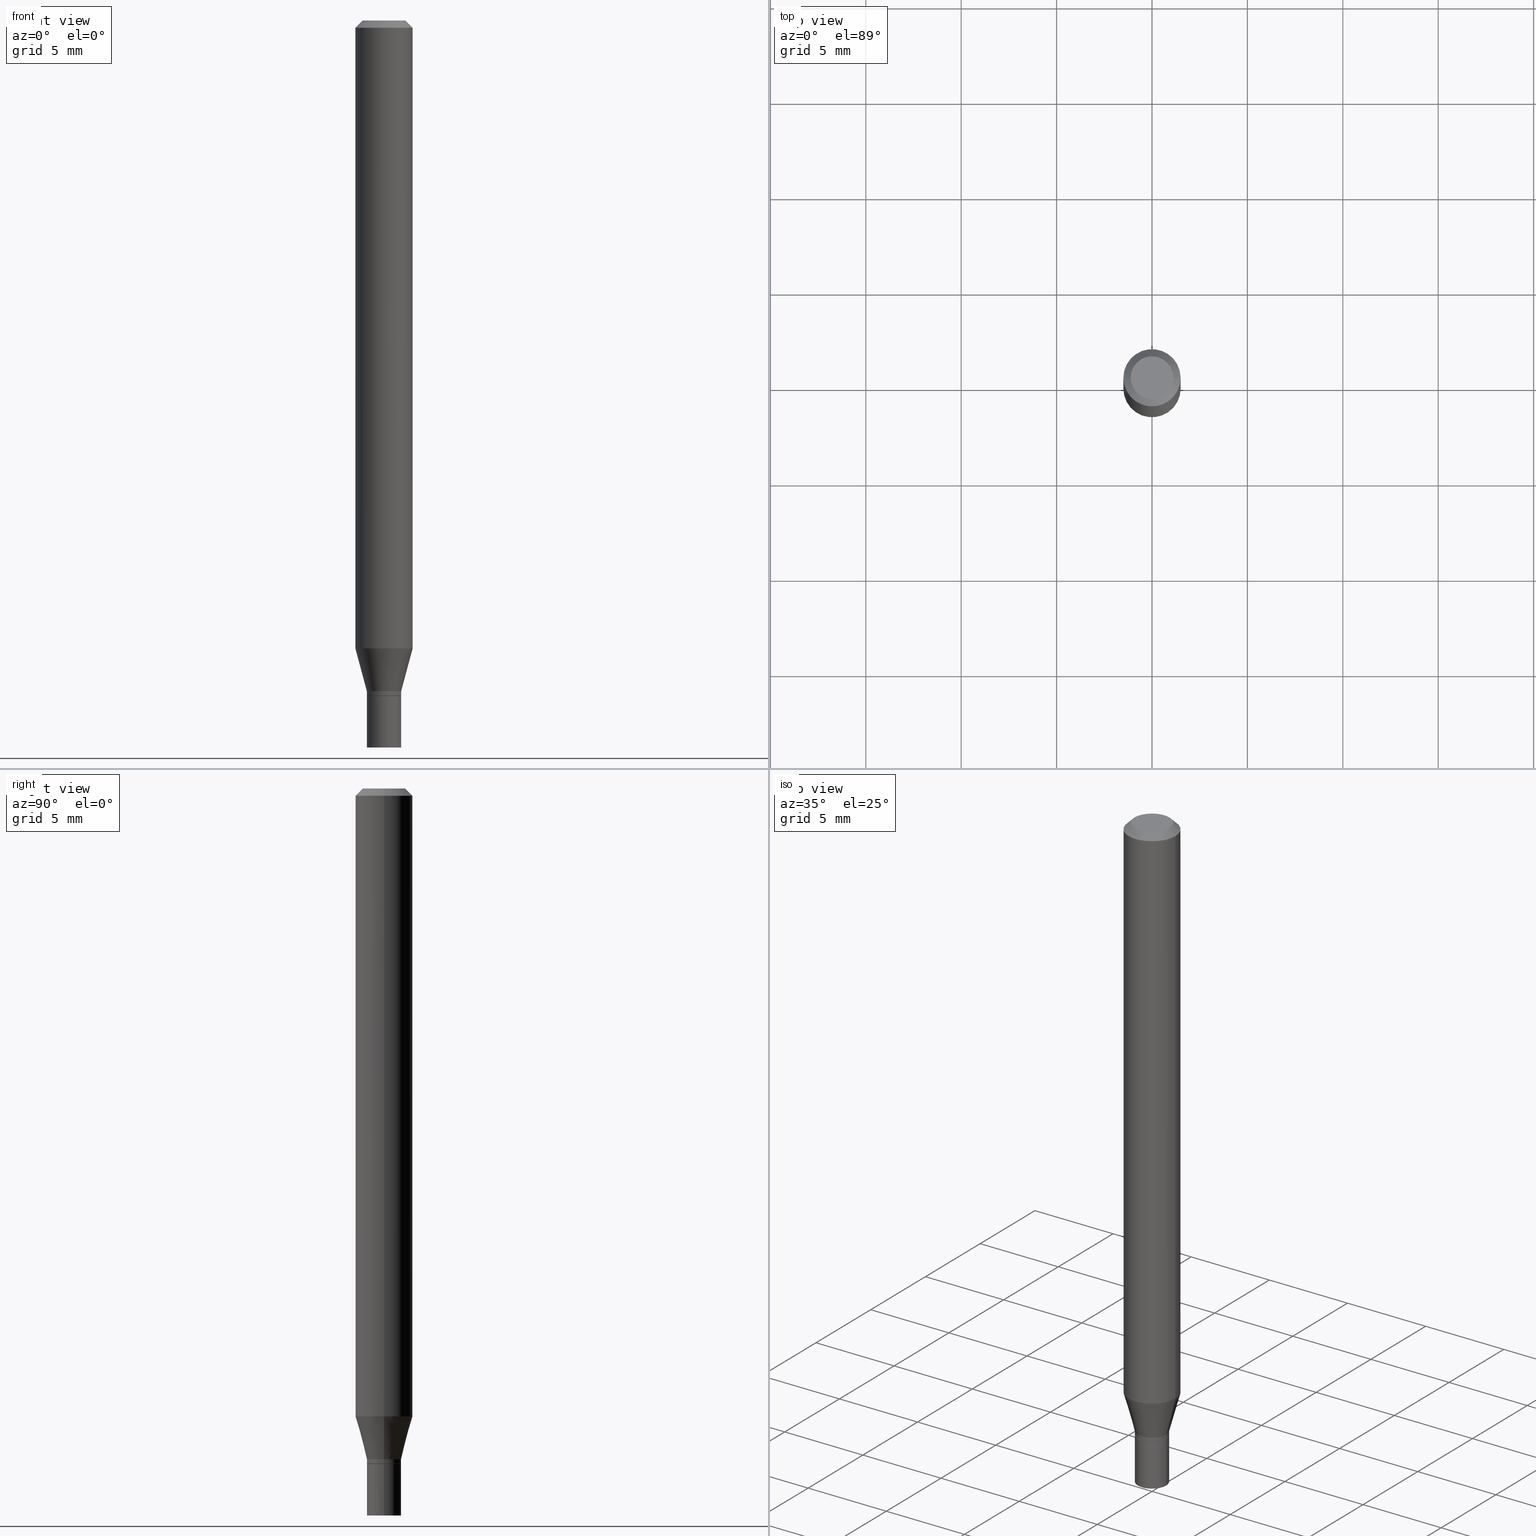
[diagram: canonical four-view strip — front | top / right | iso, engineering-drawing reading convention]
A machine part, canonical four-view strip (front | top / right | iso — engineering-drawing reading convention). The complete STEP part file that produces these views, byte-faithful:
ISO-10303-21;
HEADER;
FILE_DESCRIPTION (( 'STEP AP203' ),
    '1' );
FILE_NAME ('09296.STEP',
    '2024-03-14T18:24:56',
    ( '' ),
    ( '' ),
    'SwSTEP 2.0',
    'SolidWorks 2023',
    '' );
FILE_SCHEMA (( 'CONFIG_CONTROL_DESIGN' ));
ENDSEC;

DATA;
#1 = VERTEX_POINT ( 'NONE', #354 ) ;
#2 = CARTESIAN_POINT ( 'NONE',  ( -0.05904999999999999832, -4.104070139385231647E-15, -1.295623600941375297 ) ) ;
#3 = ADVANCED_FACE ( 'NONE', ( #177 ), #139, .T. ) ;
#4 = CARTESIAN_POINT ( 'NONE',  ( -2.903582104602009454E-45, 4.145545716378002760E-31, 1.187331483132478339E-16 ) ) ;
#5 = EDGE_CURVE ( 'NONE', #239, #148, #263, .T. ) ;
#6 = CARTESIAN_POINT ( 'NONE',  ( -0.04404999999999999888, 3.337856159934036604E-16, 1.187331483132455906E-16 ) ) ;
#7 = CIRCLE ( 'NONE', #145, 0.03545000000000019663 ) ;
#8 = CC_DESIGN_APPROVAL ( #57, ( #125 ) ) ;
#9 = FACE_OUTER_BOUND ( 'NONE', #289, .T. ) ;
#10 = DIRECTION ( 'NONE',  ( 0.000000000000000000, 0.000000000000000000, 1.000000000000000000 ) ) ;
#11 = FACE_OUTER_BOUND ( 'NONE', #56, .T. ) ;
#12 = PERSON_AND_ORGANIZATION ( #277, #187 ) ;
#13 = DIRECTION ( 'NONE',  ( -2.445468806185136597E-29, 3.491481338843145583E-15, 1.000000000000000000 ) ) ;
#14 = PRODUCT_DEFINITION_SHAPE ( 'NONE', 'NONE',  #125 ) ;
#15 =( NAMED_UNIT ( * ) SI_UNIT ( $, .STERADIAN. ) SOLID_ANGLE_UNIT ( ) );
#16 = DIRECTION ( 'NONE',  ( 1.000000000000000000, -6.982962677686273021E-15, 0.000000000000000000 ) ) ;
#17 = DIRECTION ( 'NONE',  ( 2.438088387897960049E-29, -3.491481338843145188E-15, -1.000000000000000000 ) ) ;
#18 = ORIENTED_EDGE ( 'NONE', *, *, #22, .T. ) ;
#19 = ADVANCED_FACE ( 'NONE', ( #45 ), #23, .T. ) ;
#20 = DIRECTION ( 'NONE',  ( 1.000000000000000000, -6.982962677686266711E-15, 4.876176775795936353E-29 ) ) ;
#21 = DESIGN_CONTEXT ( 'detailed design', #232, 'design' ) ;
#22 = EDGE_CURVE ( 'NONE', #95, #394, #80, .T. ) ;
#23 = CONICAL_SURFACE ( 'NONE', #38, 0.05904999999999999832, 0.7853981633974445042 ) ;
#24 = AXIS2_PLACEMENT_3D ( 'NONE', #37, #110, #175 ) ;
#25 = EDGE_LOOP ( 'NONE', ( #31, #418 ) ) ;
#26 = CARTESIAN_POINT ( 'NONE',  ( 3.668203209277705088E-31, -5.237222008264718399E-17, -0.01499999999999999944 ) ) ;
#27 = ORIENTED_EDGE ( 'NONE', *, *, #208, .F. ) ;
#28 = VECTOR ( 'NONE', #367, 39.37007874015748143 ) ;
#29 = DIRECTION ( 'NONE',  ( -2.445468806185136597E-29, 3.491481338843145583E-15, 1.000000000000000000 ) ) ;
#30 = CIRCLE ( 'NONE', #113, 0.05904999999999999832 ) ;
#31 = ORIENTED_EDGE ( 'NONE', *, *, #150, .T. ) ;
#32 = ADVANCED_BREP_SHAPE_REPRESENTATION ( '09296', ( #170, #346, #227 ), #314 ) ;
#33 = DIRECTION ( 'NONE',  ( -2.445468806185136597E-29, 3.491481338843145583E-15, 1.000000000000000000 ) ) ;
#34 = ORIENTED_EDGE ( 'NONE', *, *, #111, .F. ) ;
#35 = CARTESIAN_POINT ( 'NONE',  ( 3.383795187118373530E-29, -4.831162728557261458E-15, -1.383700000000000152 ) ) ;
#36 = VERTEX_POINT ( 'NONE', #6 ) ;
#37 = CARTESIAN_POINT ( 'NONE',  ( 3.408249875180226197E-29, -4.866077541945693896E-15, -1.393700000000000383 ) ) ;
#38 = AXIS2_PLACEMENT_3D ( 'NONE', #334, #437, #196 ) ;
#39 = APPROVAL_PERSON_ORGANIZATION ( #420, #453, #99 ) ;
#40 = DIRECTION ( 'NONE',  ( -2.438088387897960049E-29, 3.491481338843145188E-15, 1.000000000000000000 ) ) ;
#41 = CARTESIAN_POINT ( 'NONE',  ( 3.383795187118373530E-29, -4.831162728557261458E-15, -1.383700000000000152 ) ) ;
#42 = ADVANCED_FACE ( 'NONE', ( #261 ), #343, .T. ) ;
#43 = DIRECTION ( 'NONE',  ( -2.445468806185136597E-29, 3.491481338843145583E-15, 1.000000000000000000 ) ) ;
#44 = AXIS2_PLACEMENT_3D ( 'NONE', #342, #237, #378 ) ;
#45 = FACE_OUTER_BOUND ( 'NONE', #327, .T. ) ;
#46 = COORDINATED_UNIVERSAL_TIME_OFFSET ( 5, 0, .BEHIND. ) ;
#47 = CARTESIAN_POINT ( 'NONE',  ( 3.407027140777133395E-29, -4.864331801276271604E-15, -1.393200000000000216 ) ) ;
#48 = ADVANCED_FACE ( 'NONE', ( #304 ), #336, .F. ) ;
#49 = APPROVAL_STATUS ( 'not_yet_approved' ) ;
#50 = CARTESIAN_POINT ( 'NONE',  ( 0.000000000000000000, 0.000000000000000000, 0.000000000000000000 ) ) ;
#51 = APPLICATION_PROTOCOL_DEFINITION ( 'international standard', 'config_control_design', 1994, #328 ) ;
#52 = CARTESIAN_POINT ( 'NONE',  ( 3.408249875180225636E-29, -4.866077541945693107E-15, -1.393700000000000161 ) ) ;
#53 = CIRCLE ( 'NONE', #24, 0.03495000000000000190 ) ;
#54 = PERSON_AND_ORGANIZATION ( #277, #187 ) ;
#55 = FACE_OUTER_BOUND ( 'NONE', #65, .T. ) ;
#56 = EDGE_LOOP ( 'NONE', ( #269, #421, #174, #332 ) ) ;
#57 = APPROVAL ( #122, 'UNSPECIFIED' ) ;
#58 = VECTOR ( 'NONE', #464, 39.37007874015748143 ) ;
#59 = ADVANCED_FACE ( 'NONE', ( #11 ), #321, .T. ) ;
#60 = ADVANCED_FACE ( 'NONE', ( #9 ), #435, .F. ) ;
#61 = DIRECTION ( 'NONE',  ( 1.000000000000000000, -6.982962677686270655E-15, 0.000000000000000000 ) ) ;
#62 = ORIENTED_EDGE ( 'NONE', *, *, #70, .T. ) ;
#63 = ADVANCED_FACE ( 'NONE', ( #259 ), #229, .T. ) ;
#64 = DIRECTION ( 'NONE',  ( 0.7071067811865656694, -2.468850131082446387E-15, 0.7071067811865294761 ) ) ;
#65 = EDGE_LOOP ( 'NONE', ( #461, #386, #62, #352 ) ) ;
#66 = FACE_OUTER_BOUND ( 'NONE', #135, .T. ) ;
#67 = CIRCLE ( 'NONE', #380, 0.03545000000000000234 ) ;
#68 = ORIENTED_EDGE ( 'NONE', *, *, #369, .F. ) ;
#69 = CARTESIAN_POINT ( 'NONE',  ( 0.03545000000000019663, -5.078708755481240920E-15, -1.383700000000000152 ) ) ;
#70 = EDGE_CURVE ( 'NONE', #447, #360, #158, .T. ) ;
#71 = ORIENTED_EDGE ( 'NONE', *, *, #449, .T. ) ;
#72 = CARTESIAN_POINT ( 'NONE',  ( 0.03495000000000000190, -5.110132087530828773E-15, -1.393700000000000383 ) ) ;
#73 = CARTESIAN_POINT ( 'NONE',  ( -0.03545000000000000234, -4.799762375278250257E-15, -1.500000000000000222 ) ) ;
#74 = EDGE_CURVE ( 'NONE', #394, #95, #7, .T. ) ;
#75 = AXIS2_PLACEMENT_3D ( 'NONE', #335, #118, #299 ) ;
#76 = VECTOR ( 'NONE', #181, 39.37007874015748143 ) ;
#77 = LINE ( 'NONE', #190, #465 ) ;
#78 = DIRECTION ( 'NONE',  ( 1.000000000000000000, -6.982962677686270655E-15, 0.000000000000000000 ) ) ;
#79 = CARTESIAN_POINT ( 'NONE',  ( 3.383795187118373530E-29, -4.831162728557261458E-15, -1.383700000000000152 ) ) ;
#80 = CIRCLE ( 'NONE', #131, 0.03545000000000019663 ) ;
#81 = AXIS2_PLACEMENT_3D ( 'NONE', #142, #333, #456 ) ;
#82 = DIRECTION ( 'NONE',  ( 2.438088387897960049E-29, -3.491481338843145188E-15, -1.000000000000000000 ) ) ;
#83 = ADVANCED_FACE ( 'NONE', ( #403 ), #301, .T. ) ;
#84 = CYLINDRICAL_SURFACE ( 'NONE', #137, 0.03545000000000019663 ) ;
#85 = PERSON_AND_ORGANIZATION_ROLE ( 'creator' ) ;
#86 = PLANE ( 'NONE',  #322 ) ;
#87 = DATE_AND_TIME ( #414, #242 ) ;
#88 = LINE ( 'NONE', #313, #171 ) ;
#89 = CIRCLE ( 'NONE', #103, 0.03545000000000019663 ) ;
#90 = ORIENTED_EDGE ( 'NONE', *, *, #5, .F. ) ;
#91 = EDGE_CURVE ( 'NONE', #384, #454, #193, .T. ) ;
#92 = DIRECTION ( 'NONE',  ( -2.445468806185136597E-29, 3.491481338843145583E-15, 1.000000000000000000 ) ) ;
#93 = ORIENTED_EDGE ( 'NONE', *, *, #402, .F. ) ;
#94 = ORIENTED_EDGE ( 'NONE', *, *, #198, .F. ) ;
#95 = VERTEX_POINT ( 'NONE', #152 ) ;
#96 = VECTOR ( 'NONE', #426, 39.37007874015748143 ) ;
#97 = VERTEX_POINT ( 'NONE', #73 ) ;
#98 = FACE_OUTER_BOUND ( 'NONE', #203, .T. ) ;
#99 = APPROVAL_ROLE ( '' ) ;
#100 = DIRECTION ( 'NONE',  ( -2.445468806185136597E-29, 3.491481338843145583E-15, 1.000000000000000000 ) ) ;
#101 = DIRECTION ( 'NONE',  ( -2.445468806185136597E-29, 3.491481338843145583E-15, 1.000000000000000000 ) ) ;
#102 = EDGE_LOOP ( 'NONE', ( #144, #455, #459, #68 ) ) ;
#103 = AXIS2_PLACEMENT_3D ( 'NONE', #428, #385, #252 ) ;
#104 = DIRECTION ( 'NONE',  ( -2.445468806185136597E-29, 3.491481338843145583E-15, 1.000000000000000000 ) ) ;
#105 = ORIENTED_EDGE ( 'NONE', *, *, #22, .F. ) ;
#106 = CC_DESIGN_PERSON_AND_ORGANIZATION_ASSIGNMENT ( #12, #271, ( #121 ) ) ;
#107 = CARTESIAN_POINT ( 'NONE',  ( -0.03545000000000019663, -4.341672734057767677E-15, -1.383700000000000152 ) ) ;
#108 = EDGE_CURVE ( 'NONE', #384, #323, #192, .T. ) ;
#109 = EDGE_LOOP ( 'NONE', ( #391, #397, #382, #105 ) ) ;
#110 = DIRECTION ( 'NONE',  ( -2.445468806185136597E-29, 3.491481338843145583E-15, 1.000000000000000000 ) ) ;
#111 = EDGE_CURVE ( 'NONE', #1, #36, #249, .T. ) ;
#112 = DIRECTION ( 'NONE',  ( -2.445468806185136877E-29, 3.491481338843145188E-15, 1.000000000000000000 ) ) ;
#113 = AXIS2_PLACEMENT_3D ( 'NONE', #26, #220, #361 ) ;
#114 = PRODUCT_RELATED_PRODUCT_CATEGORY ( 'detail', '', ( #309 ) ) ;
#115 = DIRECTION ( 'NONE',  ( -2.445468806185136597E-29, 3.491481338843145583E-15, 1.000000000000000000 ) ) ;
#116 = CARTESIAN_POINT ( 'NONE',  ( 0.000000000000000000, 0.000000000000000000, 0.000000000000000000 ) ) ;
#117 = DATE_AND_TIME ( #201, #357 ) ;
#118 = DIRECTION ( 'NONE',  ( -2.445468806185136597E-29, 3.491481338843145583E-15, 1.000000000000000000 ) ) ;
#119 = EDGE_CURVE ( 'NONE', #323, #217, #296, .T. ) ;
#120 = CIRCLE ( 'NONE', #379, 0.03545000000000000234 ) ;
#121 = PRODUCT_DEFINITION_FORMATION_WITH_SPECIFIED_SOURCE ( 'ANY', '', #309, .NOT_KNOWN. ) ;
#122 = APPROVAL_STATUS ( 'not_yet_approved' ) ;
#123 = DIRECTION ( 'NONE',  ( -2.445468806185136597E-29, 3.491481338843145583E-15, 1.000000000000000000 ) ) ;
#124 = CC_DESIGN_DATE_AND_TIME_ASSIGNMENT ( #344, #166, ( #125 ) ) ;
#125 = PRODUCT_DEFINITION ( 'UNKNOWN', '', #121, #21 ) ;
#126 = DIRECTION ( 'NONE',  ( -2.445468806185136597E-29, 3.491481338843145583E-15, 1.000000000000000000 ) ) ;
#127 = PERSON_AND_ORGANIZATION_ROLE ( 'creator' ) ;
#128 = DIRECTION ( 'NONE',  ( 1.000000000000000000, -6.982962677686254089E-15, 0.000000000000000000 ) ) ;
#129 = EDGE_CURVE ( 'NONE', #1, #360, #77, .T. ) ;
#130 = ORIENTED_EDGE ( 'NONE', *, *, #5, .T. ) ;
#131 = AXIS2_PLACEMENT_3D ( 'NONE', #365, #115, #401 ) ;
#132 = DIRECTION ( 'NONE',  ( -2.445468806185136597E-29, 3.491481338843145583E-15, 1.000000000000000000 ) ) ;
#133 = LOCAL_TIME ( 14, 24, 56.00000000000000000, #212 ) ;
#134 = ORIENTED_EDGE ( 'NONE', *, *, #396, .F. ) ;
#135 = EDGE_LOOP ( 'NONE', ( #34, #308, #358, #350 ) ) ;
#136 = ORIENTED_EDGE ( 'NONE', *, *, #91, .F. ) ;
#137 = AXIS2_PLACEMENT_3D ( 'NONE', #50, #197, #307 ) ;
#138 = CARTESIAN_POINT ( 'NONE',  ( -0.03545000000000000234, 2.518873998269555325E-16, -1.743762489495364089E-30 ) ) ;
#139 = CYLINDRICAL_SURFACE ( 'NONE', #280, 0.05904999999999999832 ) ;
#140 = DIRECTION ( 'NONE',  ( -0.7071067811865447972, 2.468850131082228267E-15, -0.7071067811865502373 ) ) ;
#141 = VERTEX_POINT ( 'NONE', #225 ) ;
#142 = CARTESIAN_POINT ( 'NONE',  ( 3.668203209277704895E-29, -5.237222008264718177E-15, -1.500000000000000222 ) ) ;
#143 = CC_DESIGN_PERSON_AND_ORGANIZATION_ASSIGNMENT ( #339, #127, ( #121 ) ) ;
#144 = ORIENTED_EDGE ( 'NONE', *, *, #74, .T. ) ;
#145 = AXIS2_PLACEMENT_3D ( 'NONE', #47, #162, #78 ) ;
#146 = APPROVAL_PERSON_ORGANIZATION ( #438, #57, #440 ) ;
#147 = LINE ( 'NONE', #460, #281 ) ;
#148 = VERTEX_POINT ( 'NONE', #370 ) ;
#149 = CARTESIAN_POINT ( 'NONE',  ( 0.03545000000000000234, -5.484768035188696060E-15, -1.500000000000000222 ) ) ;
#150 = EDGE_CURVE ( 'NONE', #36, #1, #330, .T. ) ;
#151 = CALENDAR_DATE ( 2024, 14, 3 ) ;
#152 = CARTESIAN_POINT ( 'NONE',  ( -0.03545000000000019663, -4.612444401449314641E-15, -1.393200000000000216 ) ) ;
#153 = DIRECTION ( 'NONE',  ( 0.7071067811865447972, -7.319954787623246579E-15, -0.7071067811865502373 ) ) ;
#154 = LOCAL_TIME ( 14, 24, 56.00000000000000000, #46 ) ;
#155 = CARTESIAN_POINT ( 'NONE',  ( -0.05904999999999999832, 4.195754854663391478E-16, -2.904631170795521892E-30 ) ) ;
#156 = EDGE_CURVE ( 'NONE', #463, #239, #88, .T. ) ;
#157 = MECHANICAL_CONTEXT ( 'NONE', #328, 'mechanical' ) ;
#158 = LINE ( 'NONE', #439, #28 ) ;
#159 = EDGE_CURVE ( 'NONE', #97, #463, #120, .T. ) ;
#160 = SECURITY_CLASSIFICATION_LEVEL ( 'unclassified' ) ;
#161 = APPROVAL ( #49, 'UNSPECIFIED' ) ;
#162 = DIRECTION ( 'NONE',  ( -2.445468806185136597E-29, 3.491481338843145583E-15, 1.000000000000000000 ) ) ;
#163 = CIRCLE ( 'NONE', #236, 0.05904999999999999832 ) ;
#164 = CALENDAR_DATE ( 2024, 14, 3 ) ;
#165 = DIRECTION ( 'NONE',  ( -1.000000000000000000, 6.982962677686265922E-15, -4.876176775795935793E-29 ) ) ;
#166 = DATE_TIME_ROLE ( 'creation_date' ) ;
#167 = FACE_OUTER_BOUND ( 'NONE', #423, .T. ) ;
#168 = EDGE_CURVE ( 'NONE', #447, #323, #185, .T. ) ;
#169 = FACE_OUTER_BOUND ( 'NONE', #25, .T. ) ;
#170 = MANIFOLD_SOLID_BREP ( 'Body-Move/Copy2[1]', #305 ) ;
#171 = VECTOR ( 'NONE', #349, 39.37007874015748143 ) ;
#172 = VECTOR ( 'NONE', #290, 39.37007874015748143 ) ;
#173 = ADVANCED_FACE ( 'NONE', ( #55 ), #416, .T. ) ;
#174 = ORIENTED_EDGE ( 'NONE', *, *, #74, .F. ) ;
#175 = DIRECTION ( 'NONE',  ( 1.000000000000000000, -6.982962677686267499E-15, 0.000000000000000000 ) ) ;
#176 = AXIS2_PLACEMENT_3D ( 'NONE', #368, #407, #266 ) ;
#177 = FACE_OUTER_BOUND ( 'NONE', #312, .T. ) ;
#178 = AXIS2_PLACEMENT_3D ( 'NONE', #450, #17, #165 ) ;
#179 = CARTESIAN_POINT ( 'NONE',  ( 0.03545000000000019663, -5.111877828200251065E-15, -1.393200000000000216 ) ) ;
#180 = ORIENTED_EDGE ( 'NONE', *, *, #159, .F. ) ;
#181 = DIRECTION ( 'NONE',  ( -2.445468806185136877E-29, 3.491481338843145188E-15, 1.000000000000000000 ) ) ;
#182 = ORIENTED_EDGE ( 'NONE', *, *, #432, .T. ) ;
#183 = DIRECTION ( 'NONE',  ( 1.000000000000000000, -6.982962677686266711E-15, 0.000000000000000000 ) ) ;
#184 = ORIENTED_EDGE ( 'NONE', *, *, #91, .T. ) ;
#185 = CIRCLE ( 'NONE', #274, 0.05904999999999999832 ) ;
#186 = ADVANCED_FACE ( 'NONE', ( #169 ), #415, .F. ) ;
#187 = ORGANIZATION ( 'UNSPECIFIED', 'UNSPECIFIED', '' ) ;
#188 = CARTESIAN_POINT ( 'NONE',  ( -0.03495000000000000190, -4.617742855797538621E-15, -1.393700000000000383 ) ) ;
#189 = DIRECTION ( 'NONE',  ( -0.2588190451025209615, 5.211531920934547097E-15, 0.9659258262890682012 ) ) ;
#190 = CARTESIAN_POINT ( 'NONE',  ( 0.05904999999999999832, -4.574846268510561447E-16, -0.01499999999999999944 ) ) ;
#191 = CC_DESIGN_PERSON_AND_ORGANIZATION_ASSIGNMENT ( #54, #348, ( #309 ) ) ;
#192 = LINE ( 'NONE', #221, #351 ) ;
#193 = CIRCLE ( 'NONE', #451, 0.03545000000000019663 ) ;
#194 = DIRECTION ( 'NONE',  ( 1.000000000000000000, -6.982962677686270655E-15, 0.000000000000000000 ) ) ;
#195 = DIRECTION ( 'NONE',  ( 1.000000000000000000, 0.000000000000000000, 0.000000000000000000 ) ) ;
#196 = DIRECTION ( 'NONE',  ( -1.000000000000000000, 6.982962677686266711E-15, 0.000000000000000000 ) ) ;
#197 = DIRECTION ( 'NONE',  ( -2.445468806185136597E-29, 3.491481338843145583E-15, 1.000000000000000000 ) ) ;
#198 = EDGE_CURVE ( 'NONE', #148, #239, #67, .T. ) ;
#199 = AXIS2_PLACEMENT_3D ( 'NONE', #383, #104, #218 ) ;
#200 = DIRECTION ( 'NONE',  ( -2.445468806185136597E-29, 3.491481338843145583E-15, 1.000000000000000000 ) ) ;
#201 = CALENDAR_DATE ( 2024, 14, 3 ) ;
#202 = CARTESIAN_POINT ( 'NONE',  ( 0.000000000000000000, 0.000000000000000000, 0.000000000000000000 ) ) ;
#203 = EDGE_LOOP ( 'NONE', ( #134, #243, #244, #94 ) ) ;
#204 = LOCAL_TIME ( 14, 24, 56.00000000000000000, #375 ) ;
#205 = ADVANCED_FACE ( 'NONE', ( #374 ), #84, .T. ) ;
#206 = ORIENTED_EDGE ( 'NONE', *, *, #198, .T. ) ;
#207 = CARTESIAN_POINT ( 'NONE',  ( 0.05904999999999999832, -4.647161662000212105E-16, -0.01499999999999999944 ) ) ;
#208 = EDGE_CURVE ( 'NONE', #323, #447, #163, .T. ) ;
#209 = ORIENTED_EDGE ( 'NONE', *, *, #108, .T. ) ;
#210 = LINE ( 'NONE', #188, #408 ) ;
#211 = ADVANCED_FACE ( 'NONE', ( #167 ), #86, .F. ) ;
#212 = COORDINATED_UNIVERSAL_TIME_OFFSET ( 5, 0, .BEHIND. ) ;
#213 = ORIENTED_EDGE ( 'NONE', *, *, #443, .T. ) ;
#214 = AXIS2_PLACEMENT_3D ( 'NONE', #35, #29, #61 ) ;
#215 = DIRECTION ( 'NONE',  ( 2.445468806185136597E-29, -3.491481338843145583E-15, -1.000000000000000000 ) ) ;
#216 = APPROVAL_DATE_TIME ( #389, #453 ) ;
#217 = VERTEX_POINT ( 'NONE', #311 ) ;
#218 = DIRECTION ( 'NONE',  ( 1.000000000000000000, -6.982962677686266711E-15, 4.876176775795935793E-29 ) ) ;
#219 = ORIENTED_EDGE ( 'NONE', *, *, #396, .T. ) ;
#220 = DIRECTION ( 'NONE',  ( -2.445468806185136597E-29, 3.491481338843145583E-15, 1.000000000000000000 ) ) ;
#221 = CARTESIAN_POINT ( 'NONE',  ( -0.03545000000000019663, -4.579275328730304496E-15, -1.383700000000000152 ) ) ;
#222 = CLOSED_SHELL ( 'NONE', ( #205, #59, #448, #3, #262, #42, #173, #19, #186, #211, #356, #83 ) ) ;
#223 = DIRECTION ( 'NONE',  ( 1.000000000000000000, -6.982962677686265922E-15, 4.876176775795935793E-29 ) ) ;
#224 = DIRECTION ( 'NONE',  ( 1.000000000000000000, -6.982962677686265922E-15, 4.888540261209747396E-29 ) ) ;
#225 = CARTESIAN_POINT ( 'NONE',  ( -0.03495000000000000190, -4.615093628623426631E-15, -1.393700000000000383 ) ) ;
#226 = AXIS2_PLACEMENT_3D ( 'NONE', #116, #373, #436 ) ;
#227 = AXIS2_PLACEMENT_3D ( 'NONE', #231, #10, #195 ) ;
#228 = PERSON_AND_ORGANIZATION ( #277, #187 ) ;
#229 = CYLINDRICAL_SURFACE ( 'NONE', #226, 0.03545000000000000234 ) ;
#230 = CARTESIAN_POINT ( 'NONE',  ( 3.668203209277704895E-29, -5.237222008264718177E-15, -1.500000000000000222 ) ) ;
#231 = CARTESIAN_POINT ( 'NONE',  ( 0.000000000000000000, 0.000000000000000000, 0.000000000000000000 ) ) ;
#232 = APPLICATION_CONTEXT ( 'configuration controlled 3d designs of mechanical parts and assemblies' ) ;
#233 = DIRECTION ( 'NONE',  ( 1.000000000000000000, -6.982962677686265922E-15, 4.876176775795935793E-29 ) ) ;
#234 = EDGE_LOOP ( 'NONE', ( #182, #219, #90, #325 ) ) ;
#235 = AXIS2_PLACEMENT_3D ( 'NONE', #298, #82, #256 ) ;
#236 = AXIS2_PLACEMENT_3D ( 'NONE', #444, #126, #376 ) ;
#237 = DIRECTION ( 'NONE',  ( -2.445468806185136597E-29, 3.491481338843145583E-15, 1.000000000000000000 ) ) ;
#238 = EDGE_LOOP ( 'NONE', ( #282, #180 ) ) ;
#239 = VERTEX_POINT ( 'NONE', #446 ) ;
#240 = ORIENTED_EDGE ( 'NONE', *, *, #295, .F. ) ;
#241 = AXIS2_PLACEMENT_3D ( 'NONE', #338, #40, #223 ) ;
#242 = LOCAL_TIME ( 14, 24, 56.00000000000000000, #410 ) ;
#243 = ORIENTED_EDGE ( 'NONE', *, *, #159, .T. ) ;
#244 = ORIENTED_EDGE ( 'NONE', *, *, #156, .T. ) ;
#245 = CARTESIAN_POINT ( 'NONE',  ( 3.408249875180226197E-29, -4.866077541945693896E-15, -1.393700000000000383 ) ) ;
#246 = DIRECTION ( 'NONE',  ( 1.000000000000000000, -6.982962677686266711E-15, 4.876176775795936353E-29 ) ) ;
#247 = DIRECTION ( 'NONE',  ( 1.000000000000000000, -6.982962677686267499E-15, 0.000000000000000000 ) ) ;
#248 = AXIS2_PLACEMENT_3D ( 'NONE', #4, #400, #224 ) ;
#249 = CIRCLE ( 'NONE', #248, 0.04404999999999999888 ) ;
#250 = ORIENTED_EDGE ( 'NONE', *, *, #449, .F. ) ;
#251 = AXIS2_PLACEMENT_3D ( 'NONE', #283, #215, #326 ) ;
#252 = DIRECTION ( 'NONE',  ( 1.000000000000000000, -6.982962677686270655E-15, 0.000000000000000000 ) ) ;
#253 = ORIENTED_EDGE ( 'NONE', *, *, #366, .F. ) ;
#254 = DIRECTION ( 'NONE',  ( -0.7071067811865656694, 7.493145998870420424E-15, 0.7071067811865294761 ) ) ;
#255 = ORIENTED_EDGE ( 'NONE', *, *, #168, .F. ) ;
#256 = DIRECTION ( 'NONE',  ( -1.000000000000000000, 6.982962677686265922E-15, -4.876176775795935793E-29 ) ) ;
#257 = AXIS2_PLACEMENT_3D ( 'NONE', #355, #359, #183 ) ;
#258 = DIRECTION ( 'NONE',  ( 1.000000000000000000, -6.982962677686270655E-15, 0.000000000000000000 ) ) ;
#259 = FACE_OUTER_BOUND ( 'NONE', #234, .T. ) ;
#260 = PERSON_AND_ORGANIZATION ( #277, #187 ) ;
#261 = FACE_OUTER_BOUND ( 'NONE', #347, .T. ) ;
#262 = ADVANCED_FACE ( 'NONE', ( #345 ), #288, .T. ) ;
#263 = CIRCLE ( 'NONE', #75, 0.03545000000000000234 ) ;
#264 = VECTOR ( 'NONE', #64, 39.37007874015748143 ) ;
#265 = PERSON_AND_ORGANIZATION_ROLE ( 'classification_officer' ) ;
#266 = DIRECTION ( 'NONE',  ( 1.000000000000000000, -6.982962677686267499E-15, 0.000000000000000000 ) ) ;
#267 = COORDINATED_UNIVERSAL_TIME_OFFSET ( 5, 0, .BEHIND. ) ;
#268 = CARTESIAN_POINT ( 'NONE',  ( 3.408249875180226197E-29, -4.866077541945693896E-15, -1.393700000000000383 ) ) ;
#269 = ORIENTED_EDGE ( 'NONE', *, *, #295, .T. ) ;
#270 = DIMENSIONAL_EXPONENTS ( 1.000000000000000000, 0.000000000000000000, 0.000000000000000000, 0.000000000000000000, 0.000000000000000000, 0.000000000000000000, 0.000000000000000000 ) ;
#271 = PERSON_AND_ORGANIZATION_ROLE ( 'design_supplier' ) ;
#272 = CARTESIAN_POINT ( 'NONE',  ( 3.168407100659392834E-29, -4.523645624851571140E-15, -1.295623600941375297 ) ) ;
#273 = ORIENTED_EDGE ( 'NONE', *, *, #150, .F. ) ;
#274 = AXIS2_PLACEMENT_3D ( 'NONE', #272, #275, #16 ) ;
#275 = DIRECTION ( 'NONE',  ( -2.445468806185136597E-29, 3.491481338843145583E-15, 1.000000000000000000 ) ) ;
#276 = CC_DESIGN_PERSON_AND_ORGANIZATION_ASSIGNMENT ( #303, #265, ( #466 ) ) ;
#277 = PERSON ( 'UNSPECIFIED', 'UNSPECIFIED', 'UNSPECIFIED', ('UNSPECIFIED'), ('UNSPECIFIED'), ('UNSPECIFIED') ) ;
#278 = ORIENTED_EDGE ( 'NONE', *, *, #129, .F. ) ;
#279 = EDGE_LOOP ( 'NONE', ( #430, #209, #255, #250 ) ) ;
#280 = AXIS2_PLACEMENT_3D ( 'NONE', #284, #100, #246 ) ;
#281 = VECTOR ( 'NONE', #140, 39.37007874015748143 ) ;
#282 = ORIENTED_EDGE ( 'NONE', *, *, #432, .F. ) ;
#283 = CARTESIAN_POINT ( 'NONE',  ( 3.668203209277705088E-31, -5.237222008264718399E-17, -0.01499999999999999944 ) ) ;
#284 = CARTESIAN_POINT ( 'NONE',  ( 0.000000000000000000, 0.000000000000000000, 0.000000000000000000 ) ) ;
#285 = CARTESIAN_POINT ( 'NONE',  ( 0.05904999999999999832, -4.935989570968945271E-15, -1.295623600941375297 ) ) ;
#286 = ORIENTED_EDGE ( 'NONE', *, *, #341, .T. ) ;
#287 = FACE_OUTER_BOUND ( 'NONE', #109, .T. ) ;
#288 = CONICAL_SURFACE ( 'NONE', #214, 0.03545000000000019663, 0.2617993877991496299 ) ;
#289 = EDGE_LOOP ( 'NONE', ( #130, #206 ) ) ;
#290 = DIRECTION ( 'NONE',  ( 0.2588190451025209615, 1.565188264969624926E-15, 0.9659258262890682012 ) ) ;
#291 = EDGE_CURVE ( 'NONE', #317, #394, #294, .T. ) ;
#292 =( LENGTH_UNIT ( ) NAMED_UNIT ( * ) SI_UNIT ( $, .METRE. ) );
#293 = ORIENTED_EDGE ( 'NONE', *, *, #70, .F. ) ;
#294 = LINE ( 'NONE', #72, #264 ) ;
#295 = EDGE_CURVE ( 'NONE', #317, #141, #452, .T. ) ;
#296 = LINE ( 'NONE', #155, #406 ) ;
#297 =( NAMED_UNIT ( * ) PLANE_ANGLE_UNIT ( ) SI_UNIT ( $, .RADIAN. ) );
#298 = CARTESIAN_POINT ( 'NONE',  ( 2.475460269240121990E-16, 0.03544999999999513818, -1.393700000000000161 ) ) ;
#299 = DIRECTION ( 'NONE',  ( 1.000000000000000000, -6.982962677686254089E-15, 0.000000000000000000 ) ) ;
#300 = APPLICATION_PROTOCOL_DEFINITION ( 'international standard', 'config_control_design', 1994, #232 ) ;
#301 = CYLINDRICAL_SURFACE ( 'NONE', #388, 0.03545000000000019663 ) ;
#302 = UNCERTAINTY_MEASURE_WITH_UNIT (LENGTH_MEASURE( 1.000000000000000082E-05 ), #433, 'distance_accuracy_value', 'NONE');
#303 = PERSON_AND_ORGANIZATION ( #277, #187 ) ;
#304 = FACE_OUTER_BOUND ( 'NONE', #238, .T. ) ;
#305 = CLOSED_SHELL ( 'NONE', ( #63, #48, #318, #60 ) ) ;
#306 = AXIS2_PLACEMENT_3D ( 'NONE', #387, #33, #329 ) ;
#307 = DIRECTION ( 'NONE',  ( 1.000000000000000000, -6.982962677686267499E-15, 4.876176775795935793E-29 ) ) ;
#308 = ORIENTED_EDGE ( 'NONE', *, *, #129, .T. ) ;
#309 = PRODUCT ( '09296', '09296', '', ( #157 ) ) ;
#310 = DATE_AND_TIME ( #164, #154 ) ;
#311 = CARTESIAN_POINT ( 'NONE',  ( -0.05904999999999999832, -1.868433437000769814E-15, -0.01499999999999999944 ) ) ;
#312 = EDGE_LOOP ( 'NONE', ( #362, #319, #93, #293 ) ) ;
#313 = CARTESIAN_POINT ( 'NONE',  ( 0.03545000000000000234, -2.475460269239781793E-16, 1.728604667019659440E-30 ) ) ;
#314 =( GEOMETRIC_REPRESENTATION_CONTEXT ( 3 ) GLOBAL_UNCERTAINTY_ASSIGNED_CONTEXT ( ( #302 ) ) GLOBAL_UNIT_ASSIGNED_CONTEXT ( ( #433, #297, #15 ) ) REPRESENTATION_CONTEXT ( 'NONE', 'WORKASPACE' ) );
#315 = CC_DESIGN_DATE_AND_TIME_ASSIGNMENT ( #87, #316, ( #466 ) ) ;
#316 = DATE_TIME_ROLE ( 'classification_date' ) ;
#317 = VERTEX_POINT ( 'NONE', #431 ) ;
#318 = ADVANCED_FACE ( 'NONE', ( #98 ), #363, .T. ) ;
#319 = ORIENTED_EDGE ( 'NONE', *, *, #119, .T. ) ;
#320 = CARTESIAN_POINT ( 'NONE',  ( -0.03545000000000019663, 2.518873998269569130E-16, -1.743762489495373898E-30 ) ) ;
#321 = CONICAL_SURFACE ( 'NONE', #176, 0.03495000000000000190, 0.7853981633974739252 ) ;
#322 = AXIS2_PLACEMENT_3D ( 'NONE', #268, #413, #233 ) ;
#323 = VERTEX_POINT ( 'NONE', #2 ) ;
#324 = LINE ( 'NONE', #138, #96 ) ;
#325 = ORIENTED_EDGE ( 'NONE', *, *, #156, .F. ) ;
#326 = DIRECTION ( 'NONE',  ( -1.000000000000000000, 6.982962677686266711E-15, 0.000000000000000000 ) ) ;
#327 = EDGE_LOOP ( 'NONE', ( #278, #273, #213, #286 ) ) ;
#328 = APPLICATION_CONTEXT ( 'configuration controlled 3d designs of mechanical parts and assemblies' ) ;
#329 = DIRECTION ( 'NONE',  ( 1.000000000000000000, -6.982962677686267499E-15, 0.000000000000000000 ) ) ;
#330 = CIRCLE ( 'NONE', #44, 0.04404999999999999888 ) ;
#331 = LENGTH_MEASURE_WITH_UNIT ( LENGTH_MEASURE( 0.02539999999999999897 ), #292 );
#332 = ORIENTED_EDGE ( 'NONE', *, *, #291, .F. ) ;
#333 = DIRECTION ( 'NONE',  ( -2.445468806185136597E-29, 3.491481338843145583E-15, 1.000000000000000000 ) ) ;
#334 = CARTESIAN_POINT ( 'NONE',  ( 3.668203209277705088E-31, -5.237222008264718399E-17, -0.01499999999999999944 ) ) ;
#335 = CARTESIAN_POINT ( 'NONE',  ( 3.408249875180225636E-29, -4.866077541945693107E-15, -1.393700000000000161 ) ) ;
#336 = PLANE ( 'NONE',  #241 ) ;
#337 = APPROVAL_PERSON_ORGANIZATION ( #228, #161, #372 ) ;
#338 = CARTESIAN_POINT ( 'NONE',  ( 3.576687321579069994E-29, -5.368277968210015545E-15, -1.500000000000000222 ) ) ;
#339 = PERSON_AND_ORGANIZATION ( #277, #187 ) ;
#340 = CARTESIAN_POINT ( 'NONE',  ( 0.000000000000000000, 0.000000000000000000, 0.000000000000000000 ) ) ;
#341 = EDGE_CURVE ( 'NONE', #217, #360, #457, .T. ) ;
#342 = CARTESIAN_POINT ( 'NONE',  ( -2.903582104602009454E-45, 4.145545716378002760E-31, 1.187331483132478339E-16 ) ) ;
#343 = CONICAL_SURFACE ( 'NONE', #398, 0.03545000000000019663, 0.2617993877991496299 ) ;
#344 = DATE_AND_TIME ( #405, #204 ) ;
#345 = FACE_OUTER_BOUND ( 'NONE', #279, .T. ) ;
#346 = MANIFOLD_SOLID_BREP ( 'Body-Move/Copy2[2]', #222 ) ;
#347 = EDGE_LOOP ( 'NONE', ( #425, #184, #71, #27 ) ) ;
#348 = PERSON_AND_ORGANIZATION_ROLE ( 'design_owner' ) ;
#349 = DIRECTION ( 'NONE',  ( -2.445468806185136877E-29, 3.491481338843145188E-15, 1.000000000000000000 ) ) ;
#350 = ORIENTED_EDGE ( 'NONE', *, *, #443, .F. ) ;
#351 = VECTOR ( 'NONE', #189, 39.37007874015748143 ) ;
#352 = ORIENTED_EDGE ( 'NONE', *, *, #341, .F. ) ;
#353 = CARTESIAN_POINT ( 'NONE',  ( 0.03545000000000019663, -2.475460269239795599E-16, 1.728604667019668899E-30 ) ) ;
#354 = CARTESIAN_POINT ( 'NONE',  ( 0.04404999999999999888, -3.798447818264458600E-16, 1.187331483132502252E-16 ) ) ;
#355 = CARTESIAN_POINT ( 'NONE',  ( 3.668203209277705088E-31, -5.237222008264718399E-17, -0.01499999999999999944 ) ) ;
#356 = ADVANCED_FACE ( 'NONE', ( #287 ), #390, .T. ) ;
#357 = LOCAL_TIME ( 14, 24, 56.00000000000000000, #267 ) ;
#358 = ORIENTED_EDGE ( 'NONE', *, *, #402, .T. ) ;
#359 = DIRECTION ( 'NONE',  ( -2.445468806185136597E-29, 3.491481338843145583E-15, 1.000000000000000000 ) ) ;
#360 = VERTEX_POINT ( 'NONE', #207 ) ;
#361 = DIRECTION ( 'NONE',  ( 1.000000000000000000, -6.982962677686266711E-15, 0.000000000000000000 ) ) ;
#362 = ORIENTED_EDGE ( 'NONE', *, *, #168, .T. ) ;
#363 = CYLINDRICAL_SURFACE ( 'NONE', #199, 0.03545000000000000234 ) ;
#364 = CC_DESIGN_APPROVAL ( #453, ( #466 ) ) ;
#365 = CARTESIAN_POINT ( 'NONE',  ( 3.407027140777133395E-29, -4.864331801276271604E-15, -1.393200000000000216 ) ) ;
#366 = EDGE_CURVE ( 'NONE', #141, #317, #53, .T. ) ;
#367 = DIRECTION ( 'NONE',  ( -2.445468806185136877E-29, 3.491481338843145188E-15, 1.000000000000000000 ) ) ;
#368 = CARTESIAN_POINT ( 'NONE',  ( 3.408249875180226197E-29, -4.866077541945693896E-15, -1.393700000000000383 ) ) ;
#369 = EDGE_CURVE ( 'NONE', #394, #454, #424, .T. ) ;
#370 = CARTESIAN_POINT ( 'NONE',  ( -0.03545000000000000234, -4.799762375278250257E-15, -1.393700000000000161 ) ) ;
#371 = AXIS2_PLACEMENT_3D ( 'NONE', #245, #101, #247 ) ;
#372 = APPROVAL_ROLE ( '' ) ;
#373 = DIRECTION ( 'NONE',  ( -2.445468806185136597E-29, 3.491481338843145583E-15, 1.000000000000000000 ) ) ;
#374 = FACE_OUTER_BOUND ( 'NONE', #102, .T. ) ;
#375 = COORDINATED_UNIVERSAL_TIME_OFFSET ( 5, 0, .BEHIND. ) ;
#376 = DIRECTION ( 'NONE',  ( 1.000000000000000000, -6.982962677686273021E-15, 0.000000000000000000 ) ) ;
#377 = CONICAL_SURFACE ( 'NONE', #251, 0.05904999999999999832, 0.7853981633974445042 ) ;
#378 = DIRECTION ( 'NONE',  ( 1.000000000000000000, -6.982962677686265922E-15, 4.888540261209747396E-29 ) ) ;
#379 = AXIS2_PLACEMENT_3D ( 'NONE', #230, #200, #128 ) ;
#380 = AXIS2_PLACEMENT_3D ( 'NONE', #52, #132, #411 ) ;
#381 = EDGE_CURVE ( 'NONE', #454, #384, #89, .T. ) ;
#382 = ORIENTED_EDGE ( 'NONE', *, *, #291, .T. ) ;
#383 = CARTESIAN_POINT ( 'NONE',  ( 0.000000000000000000, 0.000000000000000000, 0.000000000000000000 ) ) ;
#384 = VERTEX_POINT ( 'NONE', #107 ) ;
#385 = DIRECTION ( 'NONE',  ( -2.445468806185136597E-29, 3.491481338843145583E-15, 1.000000000000000000 ) ) ;
#386 = ORIENTED_EDGE ( 'NONE', *, *, #208, .T. ) ;
#387 = CARTESIAN_POINT ( 'NONE',  ( 3.408249875180226197E-29, -4.866077541945693896E-15, -1.393700000000000383 ) ) ;
#388 = AXIS2_PLACEMENT_3D ( 'NONE', #340, #13, #441 ) ;
#389 = DATE_AND_TIME ( #151, #133 ) ;
#390 = CONICAL_SURFACE ( 'NONE', #306, 0.03495000000000000190, 0.7853981633974739252 ) ;
#391 = ORIENTED_EDGE ( 'NONE', *, *, #404, .F. ) ;
#392 = LINE ( 'NONE', #320, #76 ) ;
#393 = SHAPE_DEFINITION_REPRESENTATION ( #14, #32 ) ;
#394 = VERTEX_POINT ( 'NONE', #179 ) ;
#395 = CARTESIAN_POINT ( 'NONE',  ( 0.03545000000000019663, -5.078708755481240920E-15, -1.383700000000000152 ) ) ;
#396 = EDGE_CURVE ( 'NONE', #97, #148, #324, .T. ) ;
#397 = ORIENTED_EDGE ( 'NONE', *, *, #366, .T. ) ;
#398 = AXIS2_PLACEMENT_3D ( 'NONE', #41, #43, #194 ) ;
#399 = AXIS2_PLACEMENT_3D ( 'NONE', #202, #92, #20 ) ;
#400 = DIRECTION ( 'NONE',  ( -2.445468806185136597E-29, 3.491481338843145583E-15, 1.000000000000000000 ) ) ;
#401 = DIRECTION ( 'NONE',  ( 1.000000000000000000, -6.982962677686270655E-15, 0.000000000000000000 ) ) ;
#402 = EDGE_CURVE ( 'NONE', #360, #217, #30, .T. ) ;
#403 = FACE_OUTER_BOUND ( 'NONE', #427, .T. ) ;
#404 = EDGE_CURVE ( 'NONE', #141, #95, #210, .T. ) ;
#405 = CALENDAR_DATE ( 2024, 14, 3 ) ;
#406 = VECTOR ( 'NONE', #112, 39.37007874015748143 ) ;
#407 = DIRECTION ( 'NONE',  ( -2.445468806185136597E-29, 3.491481338843145583E-15, 1.000000000000000000 ) ) ;
#408 = VECTOR ( 'NONE', #254, 39.37007874015748143 ) ;
#409 = CC_DESIGN_PERSON_AND_ORGANIZATION_ASSIGNMENT ( #260, #85, ( #125 ) ) ;
#410 = COORDINATED_UNIVERSAL_TIME_OFFSET ( 5, 0, .BEHIND. ) ;
#411 = DIRECTION ( 'NONE',  ( 1.000000000000000000, -6.982962677686254089E-15, 0.000000000000000000 ) ) ;
#412 = APPROVAL_DATE_TIME ( #117, #57 ) ;
#413 = DIRECTION ( 'NONE',  ( -2.438088387897960049E-29, 3.491481338843145188E-15, 1.000000000000000000 ) ) ;
#414 = CALENDAR_DATE ( 2024, 14, 3 ) ;
#415 = PLANE ( 'NONE',  #178 ) ;
#416 = CYLINDRICAL_SURFACE ( 'NONE', #399, 0.05904999999999999832 ) ;
#417 = ORIENTED_EDGE ( 'NONE', *, *, #369, .T. ) ;
#418 = ORIENTED_EDGE ( 'NONE', *, *, #111, .T. ) ;
#419 = EDGE_CURVE ( 'NONE', #95, #384, #392, .T. ) ;
#420 = PERSON_AND_ORGANIZATION ( #277, #187 ) ;
#421 = ORIENTED_EDGE ( 'NONE', *, *, #404, .T. ) ;
#422 = CC_DESIGN_SECURITY_CLASSIFICATION ( #466, ( #121 ) ) ;
#423 = EDGE_LOOP ( 'NONE', ( #240, #253 ) ) ;
#424 = LINE ( 'NONE', #353, #58 ) ;
#425 = ORIENTED_EDGE ( 'NONE', *, *, #108, .F. ) ;
#426 = DIRECTION ( 'NONE',  ( -2.445468806185136877E-29, 3.491481338843145188E-15, 1.000000000000000000 ) ) ;
#427 = EDGE_LOOP ( 'NONE', ( #434, #18, #417, #136 ) ) ;
#428 = CARTESIAN_POINT ( 'NONE',  ( 3.383795187118373530E-29, -4.831162728557261458E-15, -1.383700000000000152 ) ) ;
#429 = CIRCLE ( 'NONE', #81, 0.03545000000000000234 ) ;
#430 = ORIENTED_EDGE ( 'NONE', *, *, #381, .T. ) ;
#431 = CARTESIAN_POINT ( 'NONE',  ( 0.03495000000000000190, -5.110132087530828773E-15, -1.393700000000000383 ) ) ;
#432 = EDGE_CURVE ( 'NONE', #463, #97, #429, .T. ) ;
#433 =( CONVERSION_BASED_UNIT ( 'INCH', #331 ) LENGTH_UNIT ( ) NAMED_UNIT ( #270 ) );
#434 = ORIENTED_EDGE ( 'NONE', *, *, #419, .F. ) ;
#435 = PLANE ( 'NONE',  #235 ) ;
#436 = DIRECTION ( 'NONE',  ( 1.000000000000000000, -6.982962677686266711E-15, 4.876176775795935793E-29 ) ) ;
#437 = DIRECTION ( 'NONE',  ( 2.445468806185136597E-29, -3.491481338843145583E-15, -1.000000000000000000 ) ) ;
#438 = PERSON_AND_ORGANIZATION ( #277, #187 ) ;
#439 = CARTESIAN_POINT ( 'NONE',  ( 0.05904999999999999832, -4.123439461173740327E-16, 2.879382386107500220E-30 ) ) ;
#440 = APPROVAL_ROLE ( '' ) ;
#441 = DIRECTION ( 'NONE',  ( 1.000000000000000000, -6.982962677686267499E-15, 4.876176775795935793E-29 ) ) ;
#442 = CC_DESIGN_APPROVAL ( #161, ( #121 ) ) ;
#443 = EDGE_CURVE ( 'NONE', #36, #217, #147, .T. ) ;
#444 = CARTESIAN_POINT ( 'NONE',  ( 3.168407100659392834E-29, -4.523645624851571140E-15, -1.295623600941375297 ) ) ;
#445 = APPROVAL_DATE_TIME ( #310, #161 ) ;
#446 = CARTESIAN_POINT ( 'NONE',  ( 0.03545000000000000234, -5.113623568869670202E-15, -1.393700000000000161 ) ) ;
#447 = VERTEX_POINT ( 'NONE', #285 ) ;
#448 = ADVANCED_FACE ( 'NONE', ( #66 ), #377, .T. ) ;
#449 = EDGE_CURVE ( 'NONE', #454, #447, #462, .T. ) ;
#450 = CARTESIAN_POINT ( 'NONE',  ( 3.075995059520799729E-16, 0.04404999999999999888, -9.443317881941664879E-17 ) ) ;
#451 = AXIS2_PLACEMENT_3D ( 'NONE', #79, #123, #258 ) ;
#452 = CIRCLE ( 'NONE', #371, 0.03495000000000000190 ) ;
#453 = APPROVAL ( #458, 'UNSPECIFIED' ) ;
#454 = VERTEX_POINT ( 'NONE', #395 ) ;
#455 = ORIENTED_EDGE ( 'NONE', *, *, #419, .T. ) ;
#456 = DIRECTION ( 'NONE',  ( 1.000000000000000000, -6.982962677686254089E-15, 0.000000000000000000 ) ) ;
#457 = CIRCLE ( 'NONE', #257, 0.05904999999999999832 ) ;
#458 = APPROVAL_STATUS ( 'not_yet_approved' ) ;
#459 = ORIENTED_EDGE ( 'NONE', *, *, #381, .F. ) ;
#460 = CARTESIAN_POINT ( 'NONE',  ( -0.05904999999999999832, 3.599717260347268549E-16, -0.01499999999999999944 ) ) ;
#461 = ORIENTED_EDGE ( 'NONE', *, *, #119, .F. ) ;
#462 = LINE ( 'NONE', #69, #172 ) ;
#463 = VERTEX_POINT ( 'NONE', #149 ) ;
#464 = DIRECTION ( 'NONE',  ( -2.445468806185136877E-29, 3.491481338843145188E-15, 1.000000000000000000 ) ) ;
#465 = VECTOR ( 'NONE', #153, 39.37007874015748143 ) ;
#466 = SECURITY_CLASSIFICATION ( '', '', #160 ) ;
ENDSEC;
END-ISO-10303-21;
